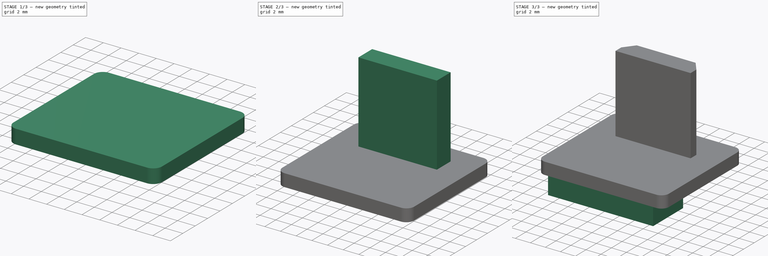
[diagram: build sequence overview — one tinted view per stage of 3, left to right]
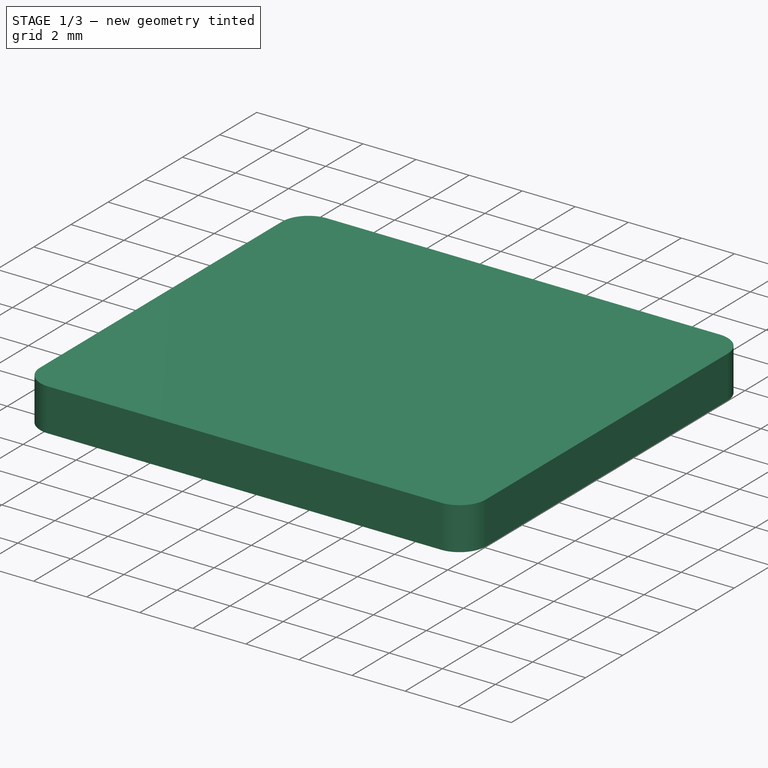
[diagram: stage 1 of 3 — iso view after this stage's code; geometry added in this stage tinted green]
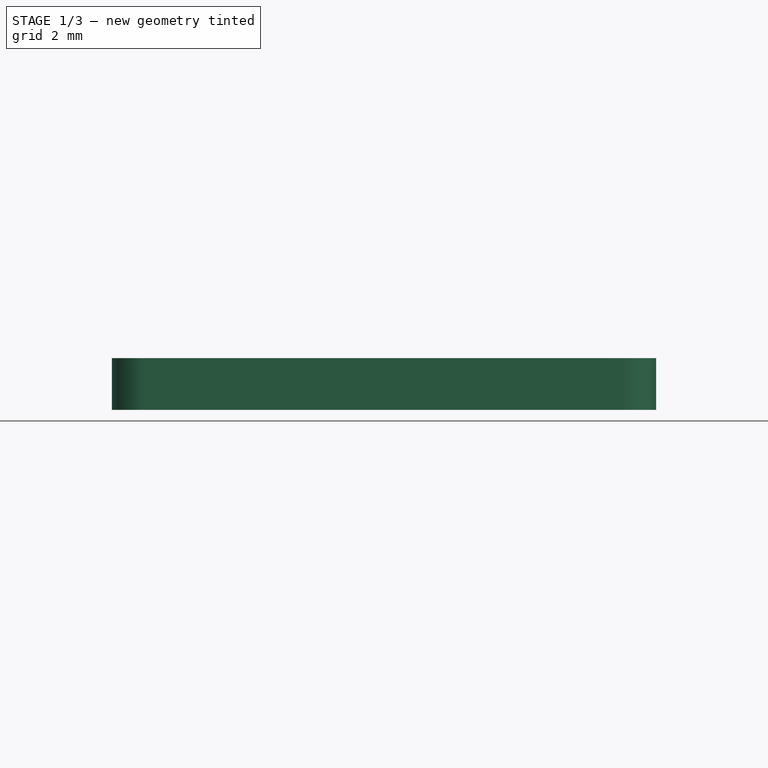
[diagram: stage 1 of 3 — front view after this stage's code; geometry added in this stage tinted green]
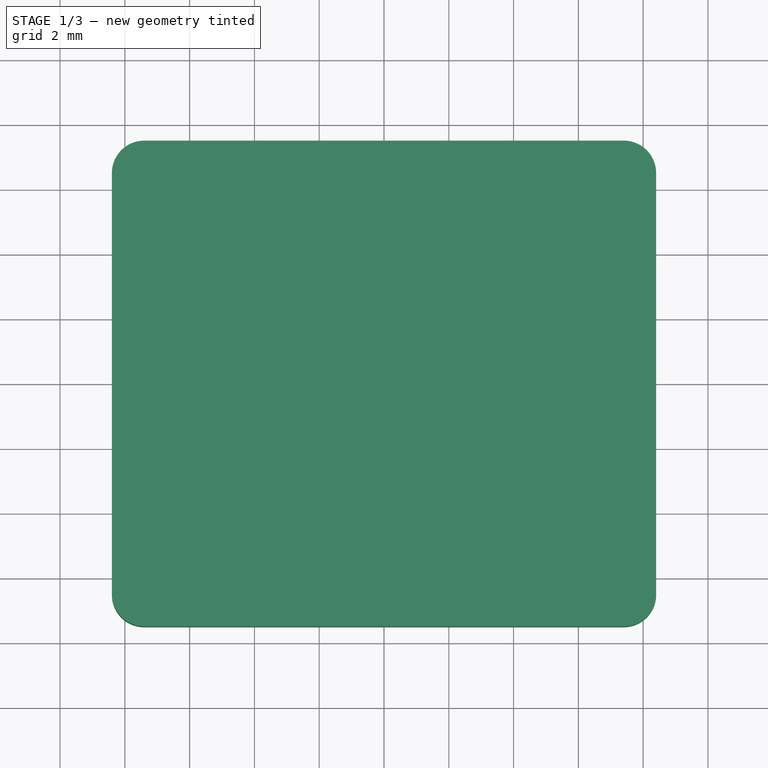
[diagram: stage 1 of 3 — top view after this stage's code; geometry added in this stage tinted green]
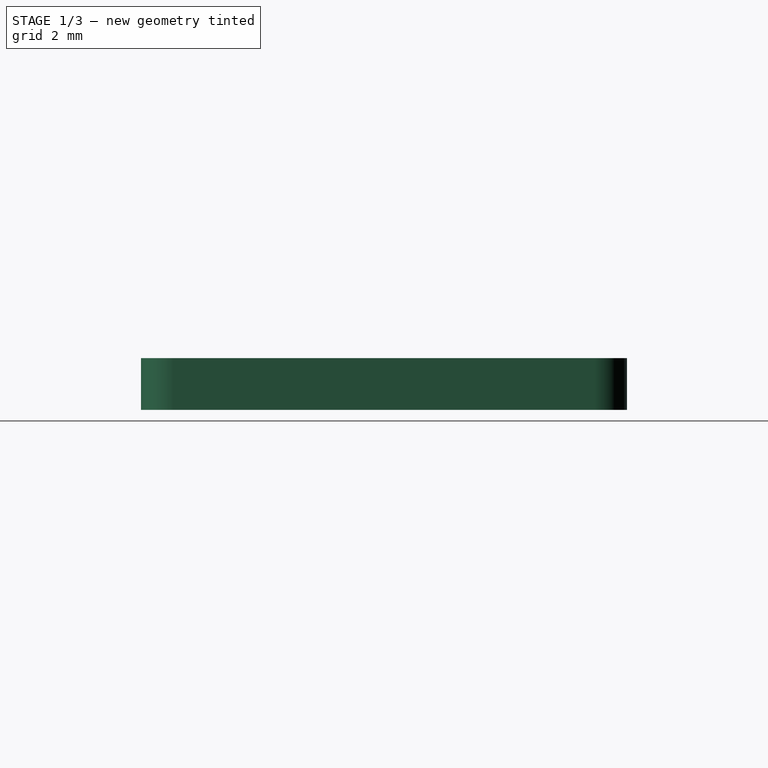
[diagram: stage 1 of 3 — right view after this stage's code; geometry added in this stage tinted green]
FCSTD DOCUMENT  (FreeCAD 0.20R29410 (Git))
Label: HDMI_2
License: All rights reserved
LicenseURL: http://en.wikipedia.org/wiki/All_rights_reserved
objects: Sketcher::SketchObject×4, PartDesign::Pad×3, PartDesign::Fillet×1, PartDesign::Pocket×1, PartDesign::Body×1
note: 15 computed .brp shape members not serialized (recipe doc carries the construction recipe); baked Part::Feature solids carry a one-line shape summary decoded from their .brp

FEATURE [Sketcher::SketchObject] Sketch
  FullyConstrained = true
  MapMode = 5
  Support = -> [XY_Plane]
  sketch-geometry (5):
    g0: LineSegment StartX=8.4 StartY=-7.5 StartZ=0 EndX=8.4 EndY=7.5 EndZ=0
    g1: LineSegment StartX=8.4 StartY=7.5 StartZ=0 EndX=-8.4 EndY=7.5 EndZ=0
    g2: LineSegment StartX=-8.4 StartY=7.5 StartZ=0 EndX=-8.4 EndY=-7.5 EndZ=0
    g3: LineSegment StartX=-8.4 StartY=-7.5 StartZ=0 EndX=8.4 EndY=-7.5 EndZ=0
    g4: GeomPoint X=0 Y=0 Z=0
  constraints (12):
    c: Coincident(g0,g1)
    c: Coincident(g1,g2)
    c: Coincident(g2,g3)
    c: Coincident(g3,g0)
    c: Horizontal(g1)
    c: Horizontal(g3)
    c: Vertical(g0)
    c: Vertical(g2)
    c: Symmetric(g1,g0,g4)
    c: Coincident(g4,g-1)
    c: DistanceX(g1,g1) = 16.8
    c: DistanceY(g0,g0) = 15
FEATURE [PartDesign::Pad] Pad
  Direction = (0,0,1)
  Length = 1.6
  Length2 = 10
  Profile = -> Sketch
  ReferenceAxis = -> Sketch [N_Axis]
  Type = 0
FEATURE [PartDesign::Fillet] Fillet
  Base = -> Pad [Edge2,Edge1,Edge8,Edge5]
  BaseFeature = -> Pad
  Radius = 1
  SupportTransform = false
  UseAllEdges = false
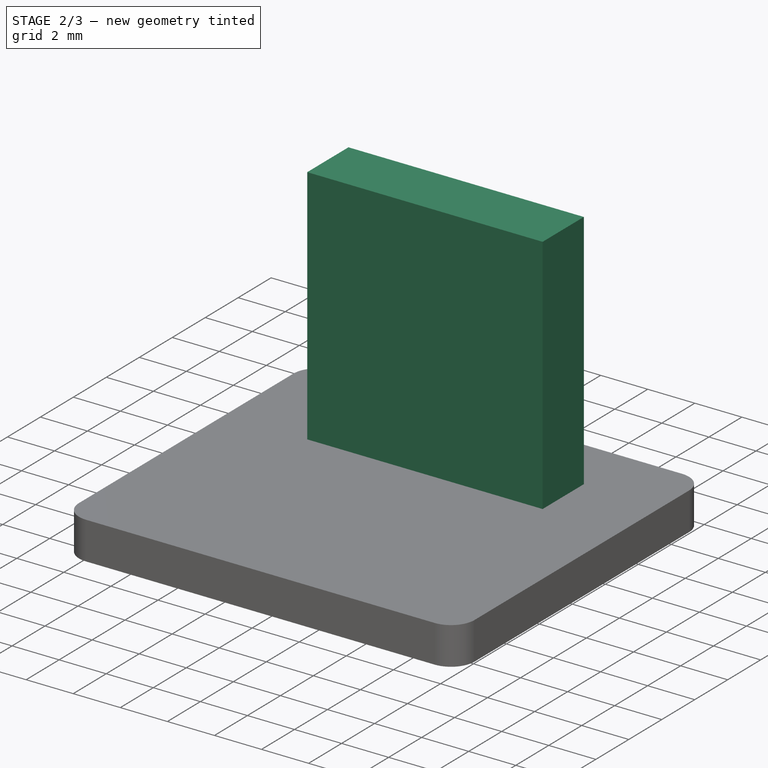
[diagram: stage 2 of 3 — iso view after this stage's code; geometry added in this stage tinted green]
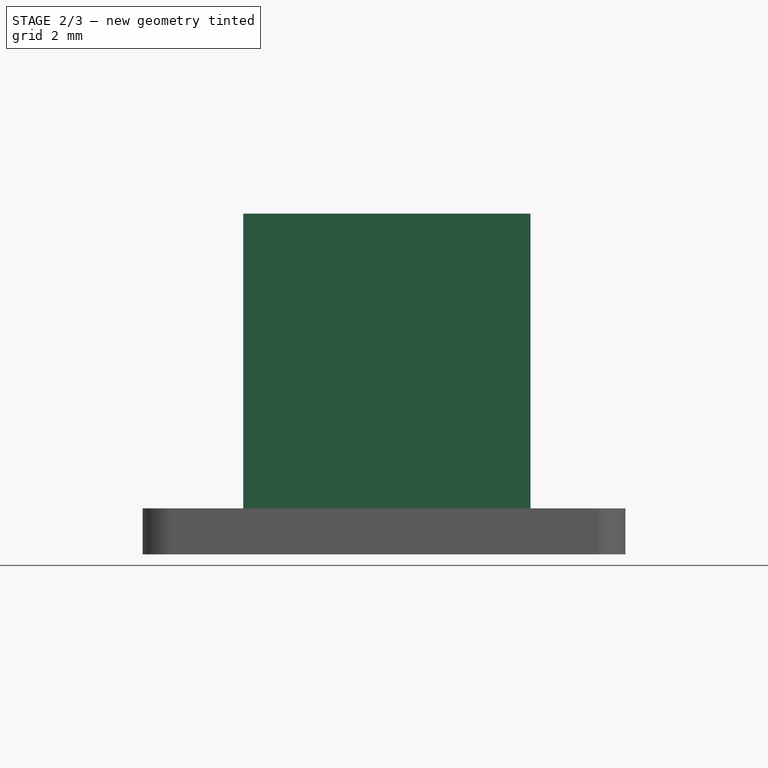
[diagram: stage 2 of 3 — front view after this stage's code; geometry added in this stage tinted green]
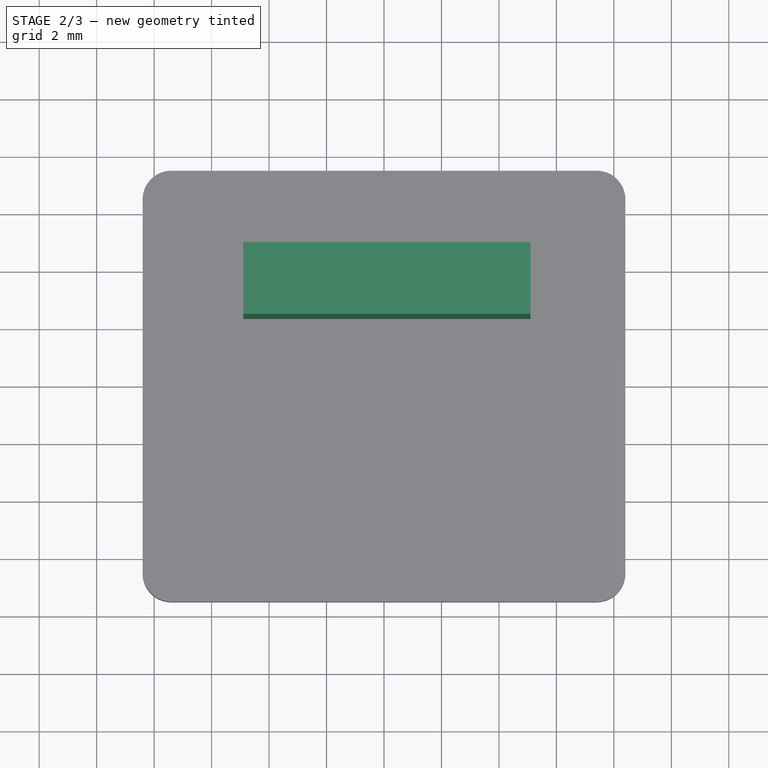
[diagram: stage 2 of 3 — top view after this stage's code; geometry added in this stage tinted green]
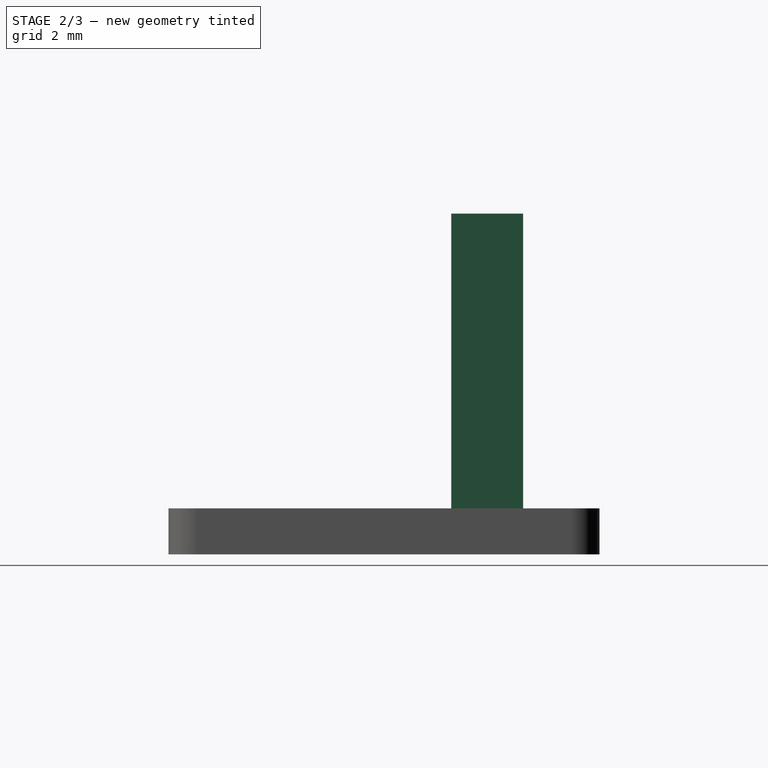
[diagram: stage 2 of 3 — right view after this stage's code; geometry added in this stage tinted green]
FEATURE [Sketcher::SketchObject] Sketch001
  ExternalGeometry = -> [Fillet]
  FullyConstrained = true
  MapMode = 5
  Placement = pos=(0,0,1.6) rot=(0,0,1;0rad)
  Support = -> [Fillet]
  sketch-geometry (5):
    g0: LineSegment StartX=-4.9 StartY=4.84 StartZ=0 EndX=-4.9 EndY=2.34 EndZ=0
    g1: LineSegment StartX=-4.9 StartY=2.34 StartZ=0 EndX=5.1 EndY=2.34 EndZ=0
    g2: LineSegment StartX=5.1 StartY=2.34 StartZ=0 EndX=5.1 EndY=4.84 EndZ=0
    g3: LineSegment StartX=5.1 StartY=4.84 StartZ=0 EndX=-4.9 EndY=4.84 EndZ=0
    g4: GeomPoint X=0.1 Y=3.59 Z=0
  constraints (13):
    c: Coincident(g0,g1)
    c: Coincident(g1,g2)
    c: Coincident(g2,g3)
    c: Coincident(g3,g0)
    c: Horizontal(g1)
    c: Horizontal(g3)
    c: Vertical(g0)
    c: Vertical(g2)
    c: Symmetric(g1,g0,g4)
    c: DistanceX(g3,g3) = 10
    c: DistanceY(g0,g0) = 2.5
    c: DistanceX(g2,g-4) = 3.3
    c: DistanceY(g0,g-5) = 2.66
FEATURE [PartDesign::Pad] Pad001
  BaseFeature = -> Fillet
  Direction = (0,0,1)
  Length = 10.26
  Length2 = 10
  Profile = -> Sketch001
  ReferenceAxis = -> Sketch001 [N_Axis]
  Type = 0
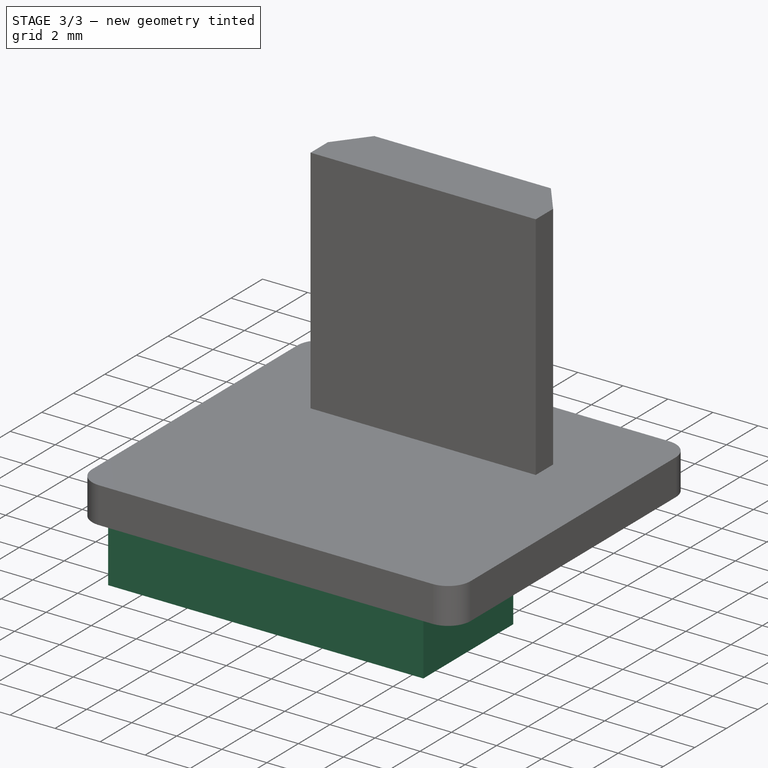
[diagram: stage 3 of 3 — iso view after this stage's code; geometry added in this stage tinted green]
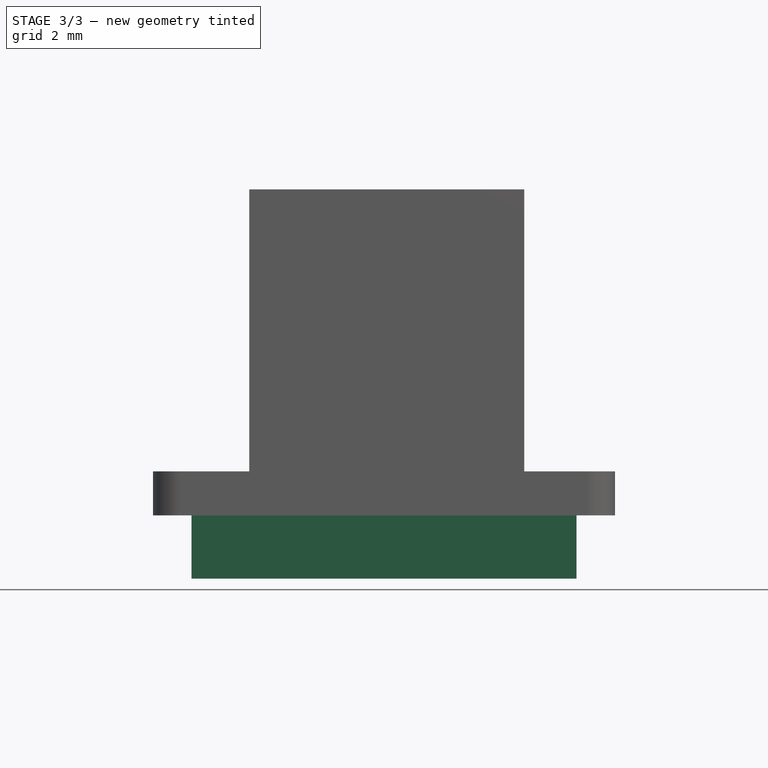
[diagram: stage 3 of 3 — front view after this stage's code; geometry added in this stage tinted green]
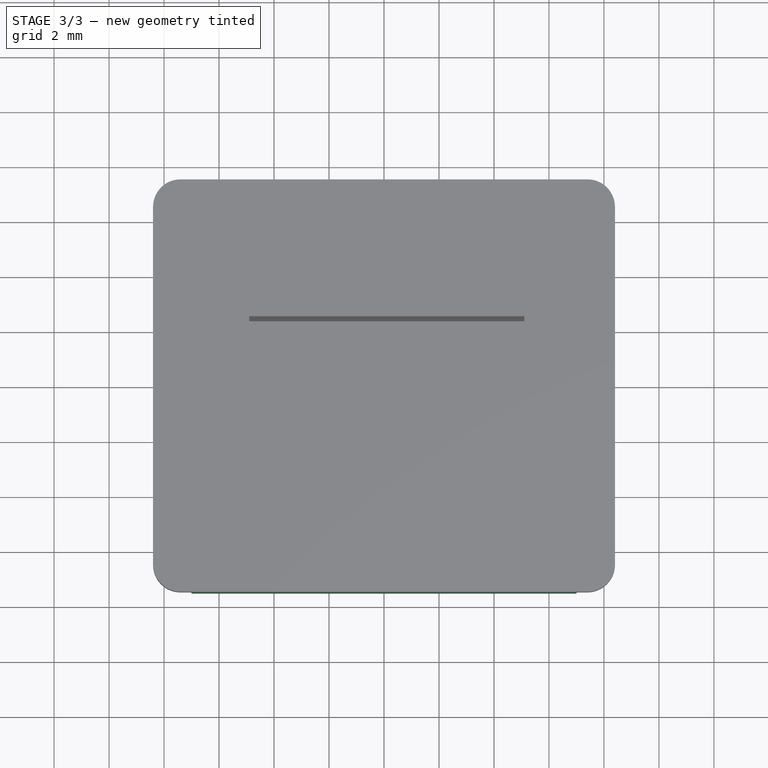
[diagram: stage 3 of 3 — top view after this stage's code; geometry added in this stage tinted green]
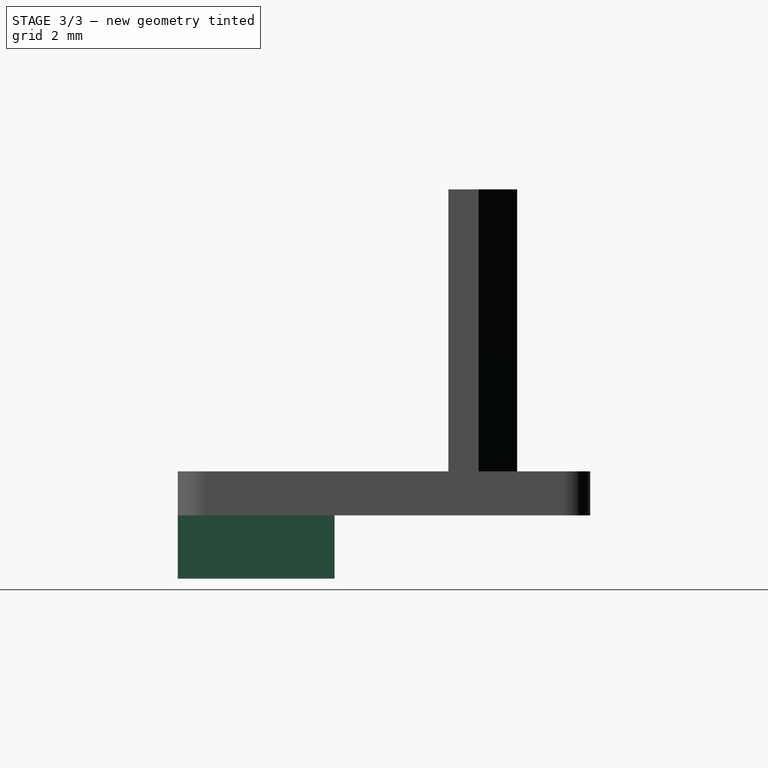
[diagram: stage 3 of 3 — right view after this stage's code; geometry added in this stage tinted green]
FEATURE [Sketcher::SketchObject] Sketch002
  ExternalGeometry = -> [Pad001]
  FullyConstrained = true
  MapMode = 5
  Placement = pos=(0,0,11.86) rot=(0,0,1;0rad)
  Support = -> [Pad001]
  sketch-geometry (6):
    g0: LineSegment StartX=-4.9 StartY=3.44 StartZ=0 EndX=-4.9 EndY=4.84 EndZ=0
    g1: LineSegment StartX=-4.9 StartY=4.84 StartZ=0 EndX=-3.82 EndY=4.84 EndZ=0
    g2: LineSegment StartX=-3.82 StartY=4.84 StartZ=0 EndX=-4.9 EndY=3.44 EndZ=0
    g3: LineSegment StartX=5.1 StartY=4.84 StartZ=0 EndX=4.02 EndY=4.84 EndZ=0
    g4: LineSegment StartX=4.02 StartY=4.84 StartZ=0 EndX=5.1 EndY=3.44 EndZ=0
    g5: LineSegment StartX=5.1 StartY=3.44 StartZ=0 EndX=5.1 EndY=4.84 EndZ=0
  constraints (16):
    c: PointOnObject(g0,g-4)
    c: Coincident(g0,g-4)
    c: Coincident(g0,g1)
    c: PointOnObject(g1,g-3)
    c: Coincident(g1,g2)
    c: Coincident(g2,g0)
    c: Coincident(g-5,g3)
    c: PointOnObject(g3,g-3)
    c: Coincident(g3,g4)
    c: PointOnObject(g4,g-5)
    c: Coincident(g4,g5)
    c: Coincident(g5,g3)
    c: Equal(g5,g0)
    c: Equal(g1,g3)
    c: DistanceX(g1,g1) = 1.08
    c: DistanceY(g0,g0) = 1.4
FEATURE [PartDesign::Pocket] Pocket
  BaseFeature = -> Pad001
  Direction = (0,0,-1)
  Length = 0
  Length2 = 5
  Profile = -> Sketch002
  ReferenceAxis = -> Sketch002 [N_Axis]
  Type = 3
  UpToFace = -> Pad001 [Face5]
FEATURE [Sketcher::SketchObject] Sketch003
  ExternalGeometry = -> [Pocket]
  FullyConstrained = true
  MapMode = 5
  Placement = pos=(0,0,0) rot=(1,0,0;3.14159rad)
  Support = -> [Pocket]
  sketch-geometry (5):
    g0: LineSegment StartX=-7 StartY=7.5 StartZ=0 EndX=-7 EndY=1.8 EndZ=0
    g1: LineSegment StartX=-7 StartY=1.8 StartZ=0 EndX=7 EndY=1.8 EndZ=0
    g2: LineSegment StartX=7 StartY=1.8 StartZ=0 EndX=7 EndY=7.5 EndZ=0
    g3: LineSegment StartX=7 StartY=7.5 StartZ=0 EndX=-7 EndY=7.5 EndZ=0
    g4: GeomPoint X=1e-16 Y=4.65 Z=0
  constraints (12):
    c: Coincident(g0,g1)
    c: Coincident(g1,g2)
    c: Coincident(g2,g3)
    c: Coincident(g3,g0)
    c: Horizontal(g1)
    c: Vertical(g0)
    c: Vertical(g2)
    c: Symmetric(g1,g0,g4)
    c: DistanceX(g3,g3) = 14
    c: DistanceY(g0,g0) = 5.7
    c: Symmetric(g0,g2,g-2)
    c: PointOnObject(g0,g-3)
FEATURE [PartDesign::Pad] Pad002
  BaseFeature = -> Pocket
  Direction = (0,0,-1)
  Length = 2.3
  Length2 = 10
  Profile = -> Sketch003
  ReferenceAxis = -> Sketch003 [N_Axis]
  Refine = true
  Type = 0
FEATURE [PartDesign::Body] Body
  Group = -> [Sketch,Pad,Fillet,Sketch001,Pad001,Sketch002,Pocket,Sketch003,Pad002]
  Origin = -> Origin
  Tip = -> Pad002
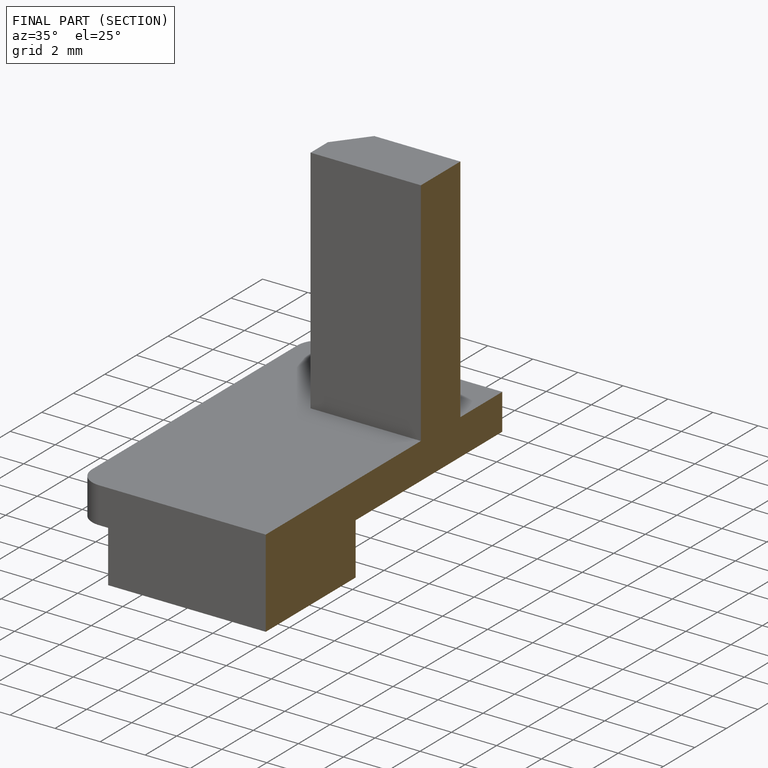
[diagram: finished part — half-section view (interior)]
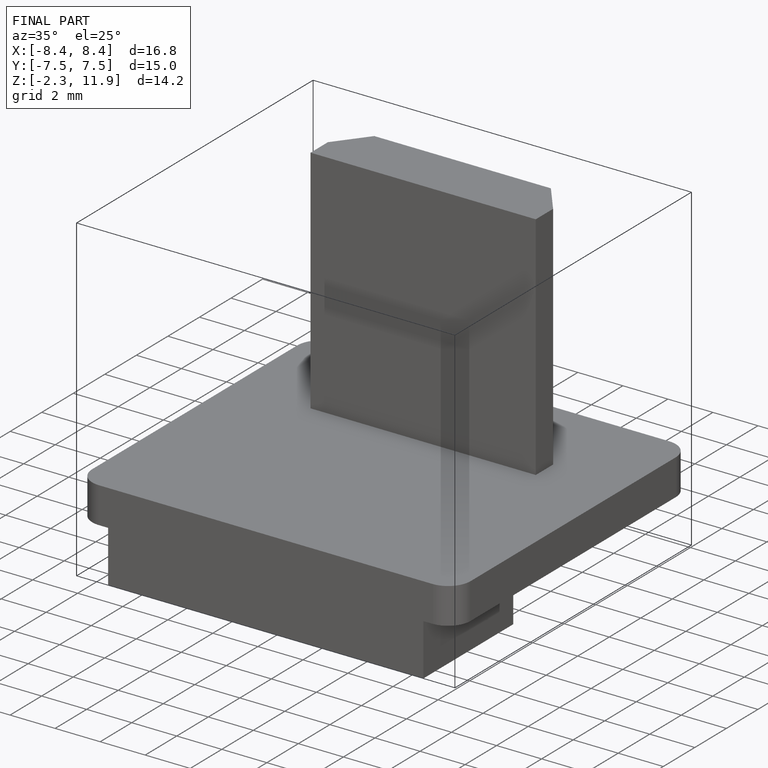
[diagram: finished part — iso view with bounding-box wireframe]
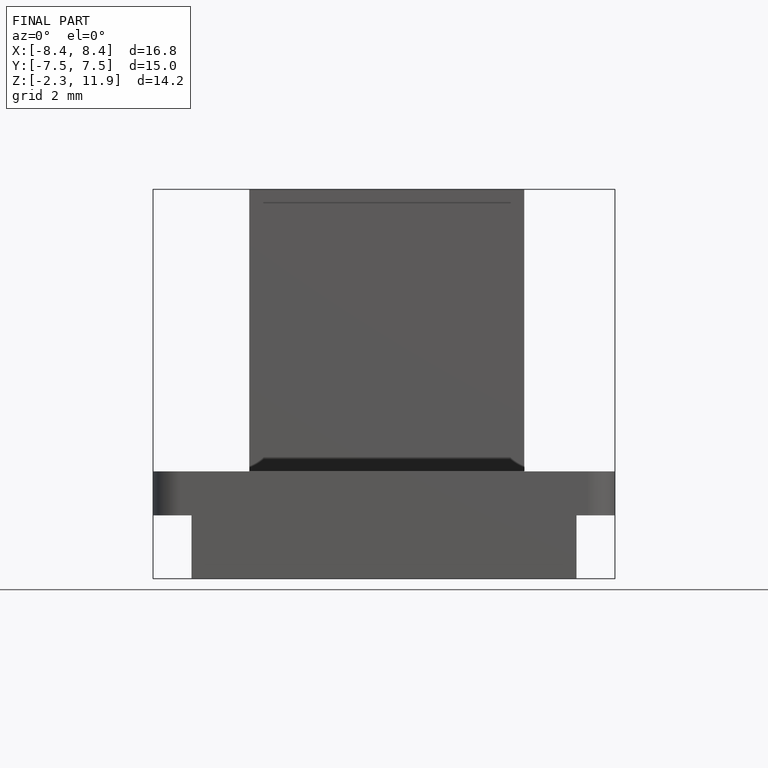
[diagram: finished part — front view with bounding-box wireframe]
